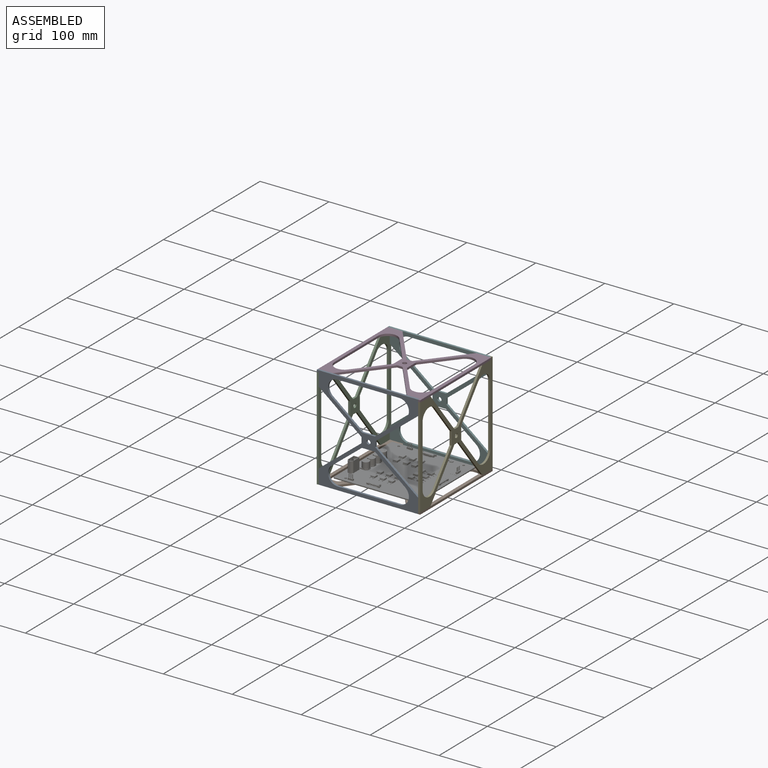
[diagram: assembled view]
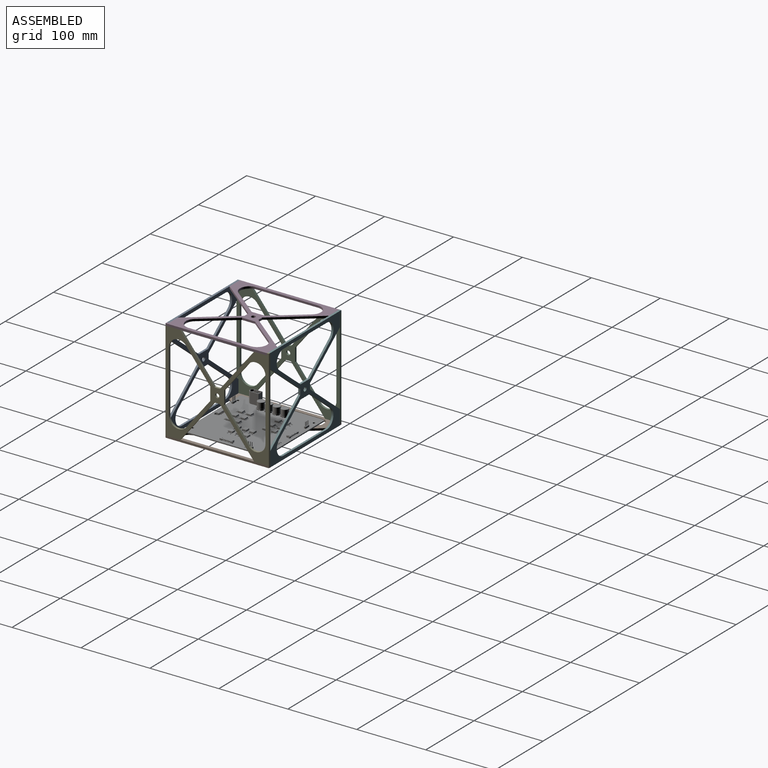
[diagram: assembled view, second angle]
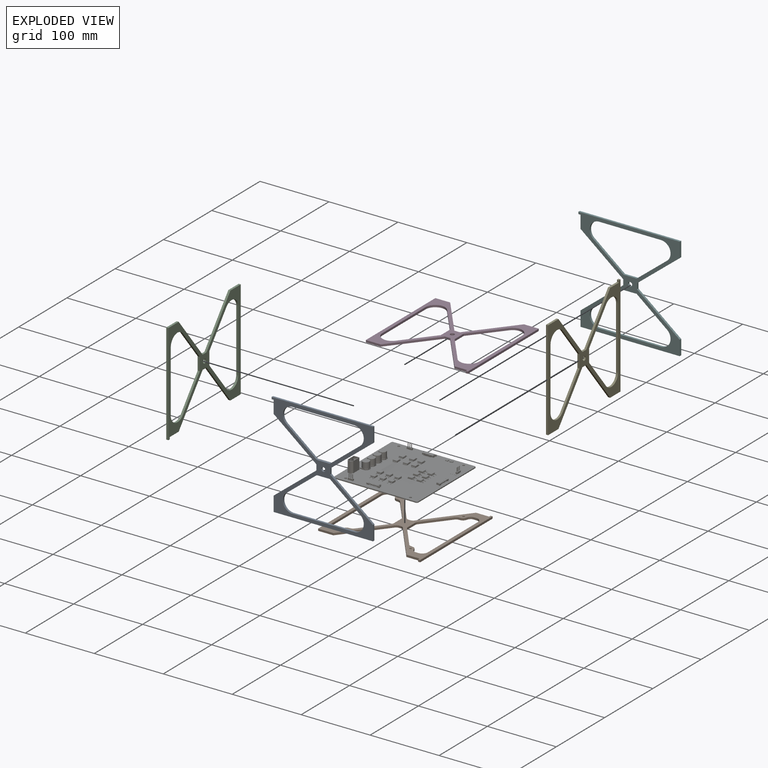
[diagram: exploded view]
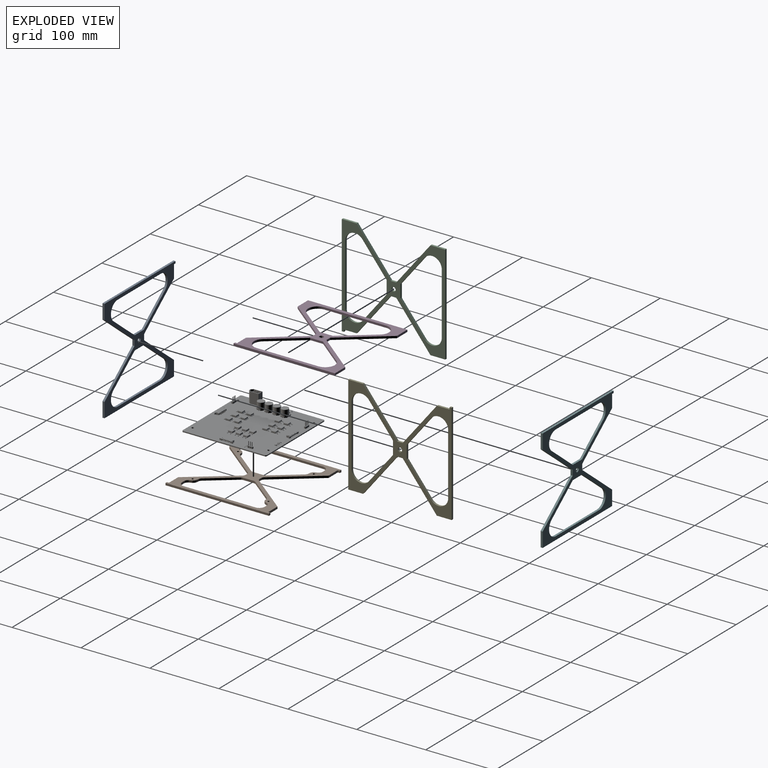
[diagram: exploded view, second angle]
FCSTD DOCUMENT  (FreeCAD 1.0R39109 (Git))
Label: assembly
License: All rights reserved
LicenseURL: https://en.wikipedia.org/wiki/All_rights_reserved
objects: App::Link×19, Assembly::AssemblyLink×6, App::FeaturePython×4, Assembly::JointGroup×1, Assembly::AssemblyObject×1
EXTERNAL_REF file=cubeshell.FCStd obj=Body007
EXTERNAL_REF file=motor.FCStd obj=Assembly
EXTERNAL_REF file=motor.FCStd obj=Body001
EXTERNAL_REF file=motor.FCStd obj=Cut001
EXTERNAL_REF file=motordriverpcb.FCStd obj=Part
EXTERNAL_REF file=flywheel.FCStd obj=Assembly
EXTERNAL_REF file=flywheel.FCStd obj=Body002
EXTERNAL_REF file=flywheel.FCStd obj=Body003
EXTERNAL_REF file=cubeshell.FCStd obj=Body

FEATURE [App::Link] Body007
  LinkedObject = -> <external cubeshell.FCStd>#Body007
FEATURE [App::FeaturePython] GroundedJoint  # Assembly grounded joint (typed FeaturePython)
  ObjectToGround = -> Body007
FEATURE [App::Link] Body001
  LinkedObject = -> <external motor.FCStd>#Body001
FEATURE [App::Link] Cut001
  LinkPlacement = pos=(2.848e-13,-4,1.86e-13) rot=(0.57735,-0.57735,0.57735;4.18879rad)
  LinkedObject = -> <external motor.FCStd>#Cut001
  Placement = pos=(2.848e-13,-4,1.86e-13) rot=(0.57735,-0.57735,0.57735;4.18879rad)
FEATURE [Assembly::AssemblyLink] Assembly001
  Group = -> [Body001,Cut001]
  LinkedObject = -> <external motor.FCStd>#Assembly
  Origin = -> Origin001
  Placement = pos=(-2.63327e-05,-62.5,75) rot=(0.92388,0,-0.382683;3.14159rad)
  Rigid = true
FEATURE [App::Link] Body008
  LinkedObject = -> <external motor.FCStd>#Body001
FEATURE [App::Link] Cut002
  LinkPlacement = pos=(1.34e-14,-4,1e-16) rot=(0.694747,-0.694747,0.186157;3.50969rad)
  LinkedObject = -> <external motor.FCStd>#Cut001
  Placement = pos=(1.34e-14,-4,1e-16) rot=(0.694747,-0.694747,0.186157;3.50969rad)
FEATURE [Assembly::AssemblyLink] Assembly002
  Group = -> [Body008,Cut002]
  LinkedObject = -> <external motor.FCStd>#Assembly
  Origin = -> Origin002
  Placement = pos=(17.0722,163.072,17.0722) rot=(0,0,1;0rad)
  Rigid = true
FEATURE [App::Link] Body009
  LinkedObject = -> <external motor.FCStd>#Body001
FEATURE [App::Link] Cut003
  LinkPlacement = pos=(1.34e-14,-4,1e-16) rot=(0.694747,-0.694747,0.186157;3.50969rad)
  LinkedObject = -> <external motor.FCStd>#Cut001
  Placement = pos=(1.34e-14,-4,1e-16) rot=(0.694747,-0.694747,0.186157;3.50969rad)
FEATURE [Assembly::AssemblyLink] Assembly003
  Group = -> [Body009,Cut003]
  LinkedObject = -> <external motor.FCStd>#Assembly
  Origin = -> Origin003
  Placement = pos=(34.1444,254.144,34.1444) rot=(0,0,1;0rad)
  Rigid = true
FEATURE [App::Link] motordriverpcb
  LinkPlacement = pos=(90,-154.028,7.51) rot=(0.707107,0.707107,0;3.14159rad)
  LinkedObject = -> <external motordriverpcb.FCStd>#Part
  Placement = pos=(90,-154.028,7.51) rot=(0.707107,0.707107,0;3.14159rad)
FEATURE [App::Link] Body002
  LinkedObject = -> <external flywheel.FCStd>#Body002
FEATURE [App::Link] Body003
  LinkPlacement = pos=(-4.35059e-07,-7.53544e-07,-2) rot=(0,0,1;0rad)
  LinkedObject = -> <external flywheel.FCStd>#Body003
  Placement = pos=(-4.35059e-07,-7.53544e-07,-2) rot=(0,0,1;0rad)
FEATURE [Assembly::AssemblyLink] flywheel
  Group = -> [Body002,Body003]
  LinkedObject = -> <external flywheel.FCStd>#Assembly
  Origin = -> Origin004
  Placement = pos=(80.332,80.332,80.332) rot=(0,0,1;0rad)
  Rigid = true
FEATURE [App::Link] Body010
  LinkedObject = -> <external flywheel.FCStd>#Body002
FEATURE [App::Link] Body011
  LinkPlacement = pos=(-4.35059e-07,-7.53544e-07,-2) rot=(0,0,1;0rad)
  LinkedObject = -> <external flywheel.FCStd>#Body003
  Placement = pos=(-4.35059e-07,-7.53544e-07,-2) rot=(0,0,1;0rad)
FEATURE [Assembly::AssemblyLink] flywheel001
  Group = -> [Body010,Body011]
  LinkedObject = -> <external flywheel.FCStd>#Assembly
  Origin = -> Origin005
  Placement = pos=(97.7312,97.7312,97.7312) rot=(0,0,1;0rad)
  Rigid = true
FEATURE [App::Link] Body012
  LinkedObject = -> <external flywheel.FCStd>#Body002
FEATURE [App::Link] Body013
  LinkPlacement = pos=(-4.35059e-07,-7.53544e-07,-2) rot=(0,0,1;0rad)
  LinkedObject = -> <external flywheel.FCStd>#Body003
  Placement = pos=(-4.35059e-07,-7.53544e-07,-2) rot=(0,0,1;0rad)
FEATURE [Assembly::AssemblyLink] flywheel002
  Group = -> [Body012,Body013]
  LinkedObject = -> <external flywheel.FCStd>#Assembly
  Origin = -> Origin006
  Placement = pos=(-2.64085e-05,-64.75,75) rot=(0.862856,-0.357407,0.357407;1.71777rad)
  Rigid = true
FEATURE [App::Link] Body
  LinkPlacement = pos=(-2.67534e-05,-75,75) rot=(-0.564537,-0.564537,-0.564537;2.0944rad)
  LinkedObject = -> <external cubeshell.FCStd>#Body
  Placement = pos=(-2.67534e-05,-75,75) rot=(-0.564537,-0.564537,-0.564537;2.0944rad)
FEATURE [App::Link] Body014
  LinkPlacement = pos=(-72,2e-06,75) rot=(-0.58,0.58,0.58;4.18879rad)
  LinkedObject = -> <external cubeshell.FCStd>#Body
  Placement = pos=(-72,2e-06,75) rot=(-0.58,0.58,0.58;4.18879rad)
FEATURE [App::Link] Body015
  LinkPlacement = pos=(4.00543e-05,-7.236e-05,147) rot=(0,0,1;0rad)
  LinkedObject = -> <external cubeshell.FCStd>#Body
  Placement = pos=(4.00543e-05,-7.236e-05,147) rot=(0,0,1;0rad)
FEATURE [App::Link] Body016
  LinkPlacement = pos=(75,-1.19207e-07,75) rot=(0.603516,0.603516,-0.603516;4.18879rad)
  LinkedObject = -> <external cubeshell.FCStd>#Body
  Placement = pos=(75,-1.19207e-07,75) rot=(0.603516,0.603516,-0.603516;4.18879rad)
FEATURE [App::Link] Body017
  LinkPlacement = pos=(-4.19059e-06,72,75) rot=(0.583052,0.583052,0.583052;4.18879rad)
  LinkedObject = -> <external cubeshell.FCStd>#Body
  Placement = pos=(-4.19059e-06,72,75) rot=(0.583052,0.583052,0.583052;4.18879rad)
FEATURE [App::FeaturePython] Joint  label="Fixed"  # Assembly joint (typed FeaturePython)
  Activated = true
  AngleMax = 0
  AngleMin = 0
  Detach1 = false
  Detach2 = false
  Distance = 0
  Distance2 = 0
  EnableAngleMax = false
  EnableAngleMin = false
  EnableLengthMax = false
  EnableLengthMin = false
  JointType = 0 (Fixed)
  LengthMax = 0
  LengthMin = 0
  Offset2 = pos=(0,0,-3) rot=(0,0,1;3.14159rad)
  Placement1 = pos=(47,55,3) rot=(0,0,1;0rad)
  Placement2 = pos=(209.028,-43,4.51) rot=(0.707107,0.707107,0;3.14159rad)
  Reference1 = -> Assembly [Body007.Edge93,Body007.Edge93]
  Reference2 = -> Assembly [motordriverpcb.LinkGroup005.Solid023.Edge70,motordriverpcb.LinkGroup005.Solid023.Edge70]
FEATURE [App::FeaturePython] Joint001  label="Fixed001"  # Assembly joint (typed FeaturePython)
  Activated = true
  AngleMax = 0
  AngleMin = 0
  Detach1 = false
  Detach2 = false
  Distance = 0
  Distance2 = 0
  EnableAngleMax = false
  EnableAngleMin = false
  EnableLengthMax = false
  EnableLengthMin = false
  JointType = 0 (Fixed)
  LengthMax = 0
  LengthMin = 0
  Offset2 = pos=(0,0,4) rot=(0,0,-1;0.785398rad)
  Placement2 = pos=(-16.5,0,0) rot=(-0.357407,-0.862856,-0.357407;4.56541rad)
  Reference1 = -> Assembly [Body.Edge80,Body.Edge80]
  Reference2 = -> Assembly [Assembly001.Cut001.Edge103,Assembly001.Cut001.Edge103]
FEATURE [App::FeaturePython] Joint002  label="Revolute"  # Assembly joint (typed FeaturePython)
  Activated = true
  AngleMax = 0
  AngleMin = 0
  Detach1 = false
  Detach2 = false
  Distance = 0
  Distance2 = 0
  EnableAngleMax = false
  EnableAngleMin = false
  EnableLengthMax = false
  EnableLengthMin = false
  JointType = 1 (Revolute)
  LengthMax = 0
  LengthMin = 0
  Offset2 = pos=(0,0,-3) rot=(0,0,1;0rad)
  Placement1 = pos=(-11.25,0,1e-16) rot=(0.57735,0.57735,-0.57735;4.18879rad)
  Placement2 = pos=(0,0,3) rot=(0,0,1;0rad)
  Reference1 = -> Assembly [Assembly001.Cut001.Face39,Assembly001.Cut001.Face39]
  Reference2 = -> Assembly [flywheel002.Body012.Face5,flywheel002.Body012.Edge9]
FEATURE [Assembly::JointGroup] Joints
  Group = -> [GroundedJoint,Joint,Joint001,Joint002]
FEATURE [Assembly::AssemblyObject] Assembly
  Group = -> [Joints,Body007,GroundedJoint,Assembly001,Assembly002,Assembly003,motordriverpcb,flywheel,flywheel001,flywheel002,Body,Body014,Body015,Body016,Body017,Joint,Joint001,Joint002]
  Origin = -> Origin
  Type = Assembly

RESOLVED EXTERNAL PARTS (link-assembly join: the EXTERNAL_REF files above that resolve inside this repo's crawl, each included once):
---- part cubeshell.FCStd = doc fcstd_5b053994b428 ----
FCSTD DOCUMENT  (FreeCAD 1.0R39109 (Git))
Label: cubeshell
License: All rights reserved
LicenseURL: http://en.wikipedia.org/wiki/All_rights_reserved
objects: Sketcher::SketchObject×2, PartDesign::Pad×2, PartDesign::Body×2, PartDesign::Fillet×1, Part::Box×1
note: 16 computed .brp shape members not serialized (recipe doc carries the construction recipe); baked Part::Feature solids carry a one-line shape summary decoded from their .brp

FEATURE [Sketcher::SketchObject] Sketch
  ArcFitTolerance = 1e-06
  AttachmentSupport = -> [XY_Plane]
  FullyConstrained = true
  MakeInternals = false
  MapMode = 5
  sketch-geometry (29):
    g0: LineSegment StartX=45.0615 StartY=53.3922 StartZ=0 EndX=10 EndY=9.5 EndZ=0
    g1: LineSegment StartX=10 StartY=-9.5 StartZ=0 EndX=45.0615 EndY=-53.3922 EndZ=0
    g2: ArcOfCircle CenterX=56 CenterY=-44.6544 CenterZ=0 NormalX=0 NormalY=0 NormalZ=1 AngleXU=0 Radius=14 StartAngle=3.81561 EndAngle=6.28319
    g3: ArcOfCircle CenterX=56 CenterY=44.6544 CenterZ=0 NormalX=0 NormalY=0 NormalZ=1 AngleXU=0 Radius=14 StartAngle=6.28318 EndAngle=8.75076
    g4: LineSegment StartX=75 StartY=-75 StartZ=0 EndX=75 EndY=72 EndZ=0
    g5: LineSegment StartX=10 StartY=9.5 StartZ=0 EndX=10 EndY=-9.5 EndZ=0
    g6: LineSegment StartX=-45.0615 StartY=53.3922 StartZ=0 EndX=-10 EndY=9.5 EndZ=0
    g7: LineSegment StartX=-10 StartY=-9.5 StartZ=0 EndX=-45.0615 EndY=-53.3922 EndZ=0
    g8: LineSegment StartX=-70 StartY=-44.6544 StartZ=0 EndX=-70 EndY=44.6544 EndZ=0
    g9: ArcOfCircle CenterX=-56 CenterY=-44.6544 CenterZ=0 NormalX=0 NormalY=0 NormalZ=1 AngleXU=0 Radius=14 StartAngle=3.14159 EndAngle=5.60917
    g10: GeomPoint [constr] X=-70 Y=-84.6119 Z=0
    g11: ArcOfCircle CenterX=-56 CenterY=44.6544 CenterZ=0 NormalX=0 NormalY=0 NormalZ=1 AngleXU=0 Radius=14 StartAngle=0.674014 EndAngle=3.14159
    g12: GeomPoint [constr] X=-70 Y=84.6119 Z=0
    g13: LineSegment StartX=-75 StartY=-72 StartZ=0 EndX=-75 EndY=72 EndZ=0
    g14: LineSegment StartX=-10 StartY=9.5 StartZ=0 EndX=-10 EndY=-9.5 EndZ=0
    g15: LineSegment StartX=-4 StartY=10 StartZ=0 EndX=4 EndY=10 EndZ=0
    g16: LineSegment StartX=-4 StartY=-10 StartZ=0 EndX=4 EndY=-10 EndZ=0
    g17: LineSegment StartX=72 StartY=-72 StartZ=0 EndX=53.5261 EndY=-72 EndZ=0
    g18: LineSegment StartX=53.5261 StartY=-72 StartZ=0 EndX=4 EndY=-10 EndZ=0
    g19: LineSegment StartX=75 StartY=72 StartZ=0 EndX=53.5261 EndY=72 EndZ=0
    g20: LineSegment StartX=53.5261 StartY=72 StartZ=0 EndX=4 EndY=10 EndZ=0
    g21: LineSegment StartX=-53.5261 StartY=72 StartZ=0 EndX=-4 EndY=10 EndZ=0
    g22: LineSegment StartX=-75 StartY=-72 StartZ=0 EndX=-53.5261 EndY=-72 EndZ=0
    g23: LineSegment StartX=-53.5261 StartY=-72 StartZ=0 EndX=-4 EndY=-10 EndZ=0
    g24: LineSegment StartX=72 StartY=-72 StartZ=0 EndX=72 EndY=-75 EndZ=0
    g25: LineSegment StartX=72 StartY=-75 StartZ=0 EndX=75 EndY=-75 EndZ=0
    g26: LineSegment StartX=-53.5261 StartY=72 StartZ=0 EndX=-75 EndY=72 EndZ=0
    g27: LineSegment StartX=70 StartY=44.6544 StartZ=0 EndX=70 EndY=-44.6544 EndZ=0
    g28: Circle CenterX=0 CenterY=0 CenterZ=0 NormalX=0 NormalY=0 NormalZ=1 AngleXU=0 Radius=3
  constraints (76):
    c: Tangent(g1,g2) = -1.5708
    c: Tangent(g0,g3) = -1.5708
    c: Vertical(g4)
    c: Radius(g2) = 14
    c: Equal(g2,g3)
    c: Vertical(g0,g1)
    c: Coincident(g0,g5)
    c: Coincident(g5,g1)
    c: Vertical(g8)
    c: PointOnObject(g10,g7)
    c: PointOnObject(g10,g8)
    c: Tangent(g7,g9) = 1.5708
    c: Tangent(g8,g9) = 1.5708
    c: PointOnObject(g12,g6)
    c: PointOnObject(g12,g8)
    c: Tangent(g6,g11) = 1.5708
    c: Tangent(g8,g11) = 1.5708
    c: Vertical(g13)
    c: Coincident(g6,g14)
    c: Coincident(g14,g7)
    c: Horizontal(g15)
    c: Horizontal(g16)
    c: Vertical(g15,g16)
    c: Horizontal(g0,g6)
    c: Equal(g9,g2)
    c: DistanceY(g22,g13) = 144
    c: Symmetric(g6,g1,g-1)
    c: Symmetric(g11,g2,g-1)
    c: DistanceY(g16,g15) = 20
    c: DistanceX(g6,g0) = 20
    c: DistanceX(g15,g15) = 8
    c: Horizontal(g17)
    c: Coincident(g17,g18)
    c: Coincident(g18,g16)
    c: Parallel(g18,g1)
    c: Distance(g18,g1) = 5
    c: Horizontal(g19)
    c: Coincident(g19,g20)
    c: Coincident(g20,g15)
    c: Parallel(g20,g0)
    c: Distance(g0,g20) = 5
    c: Coincident(g21,g15)
    c: Horizontal(g22)
    c: Coincident(g22,g23)
    c: Coincident(g23,g16)
    c: Symmetric(g3,g9,g-1)
    c: Parallel(g7,g23)
    c: Parallel(g6,g21)
    c: Distance(g6,g21) = 5
    c: Distance(g2,g4) = 5
    c: Coincident(g4,g19)
    c: Coincident(g22,g13)
    c: Distance(g13,g8) = 5
    c: Symmetric(g7,g0,g-1)
    c: Symmetric(g15,g16,g-1)
    c: DistanceX(g13,g4) = 150
    c: Vertical(g24)
    c: Coincident(g24,g25)
    c: Horizontal(g25)
    c: Coincident(g17,g24)
    c: DistanceX(g25,g25) = 3
    c: DistanceY(g24,g24) = 3
    c: Vertical(g19,g17)
    c: Coincident(g21,g26)
    c: Horizontal(g26)
    c: Vertical(g21,g22)
    c: Coincident(g25,g4)
    c: DistanceY(g4,g4) = 147
    c: DistanceY(g14,g14) = 19
    c: Coincident(g26,g13)
    c: Vertical(g27)
    c: Horizontal(g21,g19)
    c: Tangent(g27,g2) = 1.5708
    c: Diameter(g28) = 6
    c: Coincident(g28,g-1)
    c: Coincident(g27,g3)
FEATURE [PartDesign::Pad] Pad
  Direction = (0,0,1)
  Length = 3
  Length2 = 10
  Profile = -> Sketch
  ReferenceAxis = -> Sketch [N_Axis]
  Suppressed = false
  Type = 0
FEATURE [PartDesign::Body] Body
  AllowCompound = false
  Group = -> [Sketch,Pad]
  Origin = -> Origin
  Placement = pos=(-72,27,-72) rot=(0.57735,-0.57735,-0.57735;2.0944rad)
  Tip = -> Pad
FEATURE [Sketcher::SketchObject] Sketch001
  ArcFitTolerance = 1e-06
  AttachmentSupport = -> [XY_Plane305]
  FullyConstrained = true
  MakeInternals = false
  MapMode = 5
  sketch-geometry (70):
    g0: LineSegment StartX=10 StartY=-9.5 StartZ=0 EndX=39.567 EndY=-46.929 EndZ=0
    g1: LineSegment StartX=70 StartY=-52 StartZ=0 EndX=70 EndY=52 EndZ=0
    g2: ArcOfCircle CenterX=62 CenterY=-52 CenterZ=0 NormalX=0 NormalY=0 NormalZ=1 AngleXU=0 Radius=8 StartAngle=4.71239 EndAngle=6.28319
    g3: ArcOfCircle CenterX=62 CenterY=52 CenterZ=0 NormalX=0 NormalY=0 NormalZ=1 AngleXU=0 Radius=8 StartAngle=0 EndAngle=1.5708
    g4: LineSegment StartX=75 StartY=-75 StartZ=0 EndX=75 EndY=75 EndZ=0
    g5: LineSegment StartX=10 StartY=9.5 StartZ=0 EndX=10 EndY=-9.5 EndZ=0
    g6: LineSegment StartX=-10 StartY=-9.5 StartZ=0 EndX=-39.567 EndY=-46.929 EndZ=0
    g7: LineSegment StartX=-70 StartY=-52 StartZ=0 EndX=-70 EndY=52 EndZ=0
    g8: ArcOfCircle CenterX=-62 CenterY=-52 CenterZ=0 NormalX=0 NormalY=0 NormalZ=1 AngleXU=0 Radius=8 StartAngle=3.14159 EndAngle=4.71239
    g9: ArcOfCircle CenterX=-62 CenterY=52 CenterZ=0 NormalX=0 NormalY=0 NormalZ=1 AngleXU=0 Radius=8 StartAngle=1.5708 EndAngle=3.14159
    g10: LineSegment StartX=-75 StartY=-72 StartZ=0 EndX=-75 EndY=75 EndZ=0
    g11: LineSegment StartX=-10 StartY=9.5 StartZ=0 EndX=-10 EndY=-9.5 EndZ=0
    g12: LineSegment StartX=-3.97688 StartY=10 StartZ=0 EndX=4.02312 EndY=10 EndZ=0
    g13: LineSegment StartX=-4.02312 StartY=-10 StartZ=0 EndX=4.02312 EndY=-10 EndZ=0
    g14: LineSegment StartX=72 StartY=-72 StartZ=0 EndX=53 EndY=-72 EndZ=0
    g15: LineSegment StartX=53 StartY=-72 StartZ=0 EndX=4.02312 EndY=-10 EndZ=0
    g16: LineSegment StartX=53 StartY=72 StartZ=0 EndX=4.02312 EndY=10 EndZ=0
    g17: LineSegment StartX=-53 StartY=72 StartZ=0 EndX=-3.97688 EndY=10 EndZ=0
    g18: LineSegment StartX=-75 StartY=-72 StartZ=0 EndX=-53 EndY=-72 EndZ=0
    g19: LineSegment StartX=-53 StartY=-72 StartZ=0 EndX=-4.02312 EndY=-10 EndZ=0
    g20: LineSegment StartX=72 StartY=-72 StartZ=0 EndX=72 EndY=-75 EndZ=0
    g21: LineSegment StartX=72 StartY=-75 StartZ=0 EndX=75 EndY=-75 EndZ=0
    g22: LineSegment StartX=-53 StartY=72 StartZ=0 EndX=-72 EndY=72 EndZ=0
    g23: LineSegment StartX=-72 StartY=72 StartZ=0 EndX=-72 EndY=75 EndZ=0
    g24: LineSegment StartX=-72 StartY=75 StartZ=0 EndX=-75 EndY=75 EndZ=0
    g25: LineSegment StartX=53 StartY=72 StartZ=0 EndX=72 EndY=72 EndZ=0
    g26: LineSegment StartX=72 StartY=72 StartZ=0 EndX=72 EndY=75 EndZ=0
    g27: LineSegment StartX=72 StartY=75 StartZ=0 EndX=75 EndY=75 EndZ=0
    g28: Circle CenterX=-47 CenterY=55 CenterZ=0 NormalX=0 NormalY=0 NormalZ=1 AngleXU=0 Radius=1.5
    g29: Circle CenterX=-47 CenterY=-55 CenterZ=0 NormalX=0 NormalY=0 NormalZ=1 AngleXU=0 Radius=1.5
    g30: Circle CenterX=47 CenterY=-55 CenterZ=0 NormalX=0 NormalY=0 NormalZ=1 AngleXU=0 Radius=1.5
    g31: Circle CenterX=47 CenterY=55 CenterZ=0 NormalX=0 NormalY=0 NormalZ=1 AngleXU=0 Radius=1.5
    g32: LineSegment StartX=43.5105 StartY=-49.1608 StartZ=0 EndX=46.486 EndY=-49.5432 EndZ=0
    g33: LineSegment StartX=51.3237 StartY=-53.3465 StartZ=0 EndX=52.3976 EndY=-56.1477 EndZ=0
    g34: ArcOfCircle CenterX=45.7213 CenterY=-55.4943 CenterZ=0 NormalX=0 NormalY=0 NormalZ=1 AngleXU=0 Radius=6 StartAngle=0.366078 EndAngle=1.44299
    g35: GeomPoint [constr] X=50.0408 Y=-50 Z=0
    g36: ArcOfCircle CenterX=44.2752 CenterY=-43.2098 CenterZ=0 NormalX=0 NormalY=0 NormalZ=1 AngleXU=0 Radius=6 StartAngle=3.81018 EndAngle=4.58458
    g37: GeomPoint [constr] X=41.0837 Y=-48.849 Z=0
    g38: LineSegment StartX=39.567 StartY=46.929 StartZ=0 EndX=10 EndY=9.5 EndZ=0
    g39: LineSegment StartX=62 StartY=60 StartZ=0 EndX=58 EndY=60 EndZ=0
    g40: LineSegment StartX=52.3976 StartY=56.1477 StartZ=0 EndX=51.3237 EndY=53.3465 EndZ=0
    g41: LineSegment StartX=46.486 StartY=49.5432 StartZ=0 EndX=43.5105 EndY=49.1608 EndZ=0
    g42: LineSegment StartX=-39.5892 StartY=46.9218 StartZ=0 EndX=-10 EndY=9.5 EndZ=0
    g43: LineSegment StartX=-62 StartY=60 StartZ=0 EndX=-58 EndY=60 EndZ=0
    g44: LineSegment StartX=-52.3964 StartY=56.1446 StartZ=0 EndX=-51.3241 EndY=53.3428 EndZ=0
    g45: LineSegment StartX=-46.4955 StartY=49.5376 StartZ=0 EndX=-43.5206 EndY=49.1501 EndZ=0
    g46: LineSegment StartX=-62 StartY=-60 StartZ=0 EndX=-58 EndY=-60 EndZ=0
    g47: LineSegment StartX=-52.3976 StartY=-56.1477 StartZ=0 EndX=-51.3237 EndY=-53.3465 EndZ=0
    g48: LineSegment StartX=-46.486 StartY=-49.5432 StartZ=0 EndX=-43.5105 EndY=-49.1608 EndZ=0
    g49: LineSegment StartX=58 StartY=-60 StartZ=0 EndX=62 EndY=-60 EndZ=0
    g50: ArcOfCircle CenterX=58 CenterY=-54 CenterZ=0 NormalX=0 NormalY=0 NormalZ=1 AngleXU=0 Radius=6 StartAngle=3.50767 EndAngle=4.71239
    g51: GeomPoint [constr] X=53.8744 Y=-60 Z=0
    g52: ArcOfCircle CenterX=45.7213 CenterY=55.4943 CenterZ=0 NormalX=0 NormalY=0 NormalZ=1 AngleXU=0 Radius=6 StartAngle=4.84019 EndAngle=5.91711
    g53: GeomPoint [constr] X=50.0408 Y=50 Z=0
    g54: ArcOfCircle CenterX=44.2752 CenterY=43.2098 CenterZ=0 NormalX=0 NormalY=0 NormalZ=1 AngleXU=0 Radius=6 StartAngle=1.6986 EndAngle=2.47301
    g55: GeomPoint [constr] X=41.0837 Y=48.849 Z=0
    g56: ArcOfCircle CenterX=58 CenterY=54 CenterZ=0 NormalX=0 NormalY=0 NormalZ=1 AngleXU=0 Radius=6 StartAngle=1.5708 EndAngle=2.77551
    g57: GeomPoint [constr] X=53.8744 Y=60 Z=0
    g58: ArcOfCircle CenterX=-45.7213 CenterY=-55.4943 CenterZ=0 NormalX=0 NormalY=0 NormalZ=1 AngleXU=0 Radius=6 StartAngle=1.6986 EndAngle=2.77551
    g59: GeomPoint [constr] X=-50.0408 Y=-50 Z=0
    g60: ArcOfCircle CenterX=-44.2752 CenterY=-43.2098 CenterZ=0 NormalX=0 NormalY=0 NormalZ=1 AngleXU=0 Radius=6 StartAngle=4.84019 EndAngle=5.6146
    g61: GeomPoint [constr] X=-41.0837 Y=-48.849 Z=0
    g62: ArcOfCircle CenterX=-58 CenterY=-54 CenterZ=0 NormalX=0 NormalY=0 NormalZ=1 AngleXU=0 Radius=6 StartAngle=4.71239 EndAngle=5.91711
    g63: GeomPoint [constr] X=-53.8744 Y=-60 Z=0
    g64: ArcOfCircle CenterX=-44.2957 CenterY=43.2004 CenterZ=0 NormalX=0 NormalY=0 NormalZ=1 AngleXU=0 Radius=6 StartAngle=0.669042 EndAngle=1.44125
    g65: GeomPoint [constr] X=-41.102 Y=48.835 Z=0
    g66: ArcOfCircle CenterX=-45.7204 CenterY=55.4874 CenterZ=0 NormalX=0 NormalY=0 NormalZ=1 AngleXU=0 Radius=6 StartAngle=3.50711 EndAngle=4.58285
    g67: GeomPoint [constr] X=-50.0447 Y=50 Z=0
    g68: ArcOfCircle CenterX=-58 CenterY=54 CenterZ=0 NormalX=0 NormalY=0 NormalZ=1 AngleXU=0 Radius=6 StartAngle=0.365517 EndAngle=1.5708
    g69: GeomPoint [constr] X=-53.8719 Y=60 Z=0
  constraints (176):
    c: Vertical(g1)
    c: Tangent(g1,g2) = -1.5708
    c: Tangent(g1,g3) = -1.5708
    c: Vertical(g4)
    c: Radius(g2) = 8
    c: Equal(g2,g3)
    c: Vertical(g38,g0)
    c: Coincident(g38,g5)
    c: Coincident(g5,g0)
    c: Vertical(g7)
    c: Tangent(g7,g8) = 1.5708
    c: Tangent(g7,g9) = 1.5708
    c: Vertical(g10)
    c: Coincident(g42,g11)
    c: Coincident(g11,g6)
    c: Horizontal(g12)
    c: Horizontal(g13)
    c: Vertical(g12,g13)
    c: Horizontal(g38,g42)
    c: Equal(g8,g2)
    c: DistanceY(g18,g10) = 147
    c: Symmetric(g42,g0,g-1)
    c: Symmetric(g9,g2,g-1)
    c: DistanceY(g13,g12) = 20
    c: DistanceX(g42,g38) = 20
    c: DistanceX(g12,g12) = 8
    c: Horizontal(g14)
    c: Coincident(g14,g15)
    c: Coincident(g15,g13)
    c: Parallel(g15,g0)
    c: Coincident(g16,g12)
    c: Coincident(g17,g12)
    c: Horizontal(g18)
    c: Coincident(g18,g19)
    c: Coincident(g19,g13)
    c: Symmetric(g3,g8,g-1)
    c: Parallel(g6,g19)
    c: Distance(g1,g4) = 5
    c: Coincident(g18,g10)
    c: Distance(g10,g7) = 5
    c: Symmetric(g6,g38,g-1)
    c: Symmetric(g12,g13,g-1)
    c: DistanceX(g10,g4) = 150
    c: Vertical(g20)
    c: Coincident(g20,g21)
    c: Horizontal(g21)
    c: Coincident(g14,g20)
    c: DistanceX(g21,g21) = 3
    c: DistanceY(g20,g20) = 3
    c: Vertical(g16,g14)
    c: Vertical(g17,g18)
    c: Coincident(g21,g4)
    c: DistanceY(g4,g4) = 150
    c: DistanceY(g11,g11) = 19
    c: Coincident(g17,g22)
    c: Horizontal(g22)
    c: Coincident(g22,g23)
    c: Vertical(g23)
    c: Coincident(g23,g24)
    c: Horizontal(g24)
    c: Coincident(g10,g24)
    c: DistanceX(g24,g24) = 3
    c: DistanceY(g23,g23) = 3
    c: Coincident(g16,g25)
    c: Horizontal(g25)
    c: Coincident(g25,g26)
    c: Vertical(g26)
    c: Coincident(g26,g27)
    c: Horizontal(g27)
    c: Coincident(g4,g27)
    c: DistanceX(g27,g27) = 3
    c: DistanceY(g26,g26) = 3
    c: Diameter(g28) = 3
    c: Diameter(g29) = 3
    c: Diameter(g30) = 3
    c: Diameter(g31) = 3
    c: Vertical(g29,g28)
    c: Horizontal(g31,g28)
    c: Vertical(g31,g30)
    c: Horizontal(g30,g29)
    c: DistanceY(g29,g28) = 110
    c: DistanceX(g28,g31) = 94
    c: Symmetric(g28,g30,g-1)
    c: Horizontal(g9,g3)
    c: PointOnObject(g35,g33)
    c: PointOnObject(g35,g32)
    c: Tangent(g33,g34) = 1.5708
    c: Tangent(g32,g34) = 1.5708
    c: PointOnObject(g37,g32)
    c: PointOnObject(g37,g0)
    c: Tangent(g32,g36) = -1.5708
    c: Tangent(g0,g36) = -1.5708
    c: Tangent(g3,g39) = -1.5708
    c: Tangent(g9,g43) = 1.5708
    c: Tangent(g8,g46) = -1.5708
    c: Parallel(g38,g16)
    c: Parallel(g42,g17)
    c: Tangent(g49,g2) = -1.5708
    c: PointOnObject(g51,g33)
    c: PointOnObject(g51,g49)
    c: Tangent(g33,g50) = -1.5708
    c: Tangent(g49,g50) = -1.5708
    c: PointOnObject(g53,g41)
    c: PointOnObject(g53,g40)
    c: Tangent(g41,g52) = 1.5708
    c: Tangent(g40,g52) = 1.5708
    c: PointOnObject(g55,g41)
    c: PointOnObject(g55,g38)
    c: Tangent(g41,g54) = -1.5708
    c: Tangent(g38,g54) = -1.5708
    c: PointOnObject(g57,g40)
    c: PointOnObject(g57,g39)
    c: Tangent(g40,g56) = -1.5708
    c: Tangent(g39,g56) = -1.5708
    c: Distance(g16,g38) = 5
    c: Distance(g15,g0) = 5
    c: Distance(g6,g19) = 5
    c: Horizontal(g18,g14)
    c: PointOnObject(g59,g48)
    c: PointOnObject(g59,g47)
    c: Tangent(g48,g58) = 1.5708
    c: Tangent(g47,g58) = 1.5708
    c: PointOnObject(g61,g6)
    c: PointOnObject(g61,g48)
    c: Tangent(g6,g60) = 1.5708
    c: Tangent(g48,g60) = -1.5708
    c: PointOnObject(g63,g47)
    c: PointOnObject(g63,g46)
    c: Tangent(g47,g62) = -1.5708
    c: Tangent(g46,g62) = -1.5708
    c: PointOnObject(g65,g42)
    c: PointOnObject(g65,g45)
    c: Tangent(g42,g64) = 1.5708
    c: Tangent(g45,g64) = 1.5708
    c: PointOnObject(g67,g44)
    c: PointOnObject(g67,g45)
    c: Tangent(g44,g66) = -1.5708
    c: Tangent(g45,g66) = -1.5708
    c: PointOnObject(g69,g43)
    c: PointOnObject(g69,g44)
    c: Tangent(g43,g68) = 1.5708
    c: Tangent(g44,g68) = 1.5708
    c: Radius(g34) = 6
    c: Horizontal(g49)
    c: Equal(g32,g33)
    c: DistanceX(g49,g49) = 4
    c: Distance(g33,g33) = 3
    c: Distance(g14,g49) = 12
    c: Distance(g35,g14) = 22
    c: Horizontal(g39)
    c: Equal(g34,g50)
    c: Equal(g34,g36)
    c: Equal(g34,g54)
    c: Equal(g34,g52)
    c: Equal(g34,g56)
    c: Equal(g41,g40)
    c: Equal(g49,g39)
    c: Equal(g33,g41)
    c: Distance(g53,g25) = 22
    c: Equal(g34,g58)
    c: Equal(g34,g60)
    c: Equal(g34,g62)
    c: Equal(g33,g48)
    c: Equal(g33,g47)
    c: Horizontal(g46)
    c: Equal(g49,g46)
    c: Distance(g59,g18) = 22
    c: Equal(g34,g66)
    c: Horizontal(g43)
    c: Equal(g49,g43)
    c: Distance(g67,g22) = 22
    c: DistanceX(g18,g18) = 22
    c: Equal(g33,g44)
    c: Equal(g33,g45)
    c: Equal(g34,g64)
    c: Equal(g34,g68)
FEATURE [PartDesign::Pad] Pad001
  Direction = (0,0,1)
  Length = 3
  Length2 = 10
  Profile = -> Sketch001
  ReferenceAxis = -> Sketch001 [N_Axis]
  Suppressed = false
  Type = 0
FEATURE [PartDesign::Fillet] Fillet001
  Base = -> Pad001 [Edge20,Edge23,Edge56,Edge59,Edge47,Edge44,Edge116,Edge119]
  BaseFeature = -> Pad001
  Radius = 6
  Refine = true
  SupportTransform = false
  Suppressed = false
  UseAllEdges = false
FEATURE [PartDesign::Body] Body007
  AllowCompound = false
  Group = -> [Sketch001,Pad001,Fillet001]
  Origin = -> Origin305
  Placement = pos=(1.6e-14,99,-72) rot=(0.57735,-0.57735,-0.57735;4.18879rad)
  Tip = -> Fillet001
FEATURE [Part::Box] Box  label="Cube"
  AttacherType = Attacher::AttachEngine3D
  Height = 12
  Length = 12
  Placement = pos=(-72,99,-144) rot=(0,0,1;4.71239rad)
  Width = 12
---- part flywheel.FCStd = doc fcstd_7f3940c26f2a ----
FCSTD DOCUMENT  (FreeCAD 1.0R39109 (Git))
Label: flywheel
License: All rights reserved
LicenseURL: https://en.wikipedia.org/wiki/All_rights_reserved
objects: Sketcher::SketchObject×12, PartDesign::Pocket×9, PartDesign::Pad×2, PartDesign::PolarPattern×2, PartDesign::Fillet×2, PartDesign::Body×2, App::Link×2, App::FeaturePython×2, Assembly::JointGroup×1, Assembly::AssemblyObject×1
note: 69 computed .brp shape members not serialized (recipe doc carries the construction recipe); baked Part::Feature solids carry a one-line shape summary decoded from their .brp

FEATURE [Sketcher::SketchObject] Sketch
  ArcFitTolerance = 1e-06
  AttachmentSupport = -> [XY_Plane]
  FullyConstrained = true
  MakeInternals = false
  MapMode = 5
  sketch-geometry (16):
    g0: Circle CenterX=0 CenterY=0 CenterZ=0 NormalX=0 NormalY=0 NormalZ=1 AngleXU=0 Radius=55
    g1: ArcOfCircle CenterX=0 CenterY=0 CenterZ=0 NormalX=0 NormalY=0 NormalZ=1 AngleXU=0 Radius=45 StartAngle=1.62638 EndAngle=3.60961
    g2: LineSegment StartX=-2.5 StartY=18.7639 StartZ=0 EndX=-2.5 EndY=44.9305 EndZ=0
    g3: LineSegment StartX=2.5 StartY=18.7639 StartZ=0 EndX=2.5 EndY=44.9305 EndZ=0
    g4: LineSegment StartX=-17.5 StartY=-7.21688 StartZ=0 EndX=-40.161 EndY=-20.3002 EndZ=0
    g5: LineSegment StartX=-15 StartY=-11.547 StartZ=0 EndX=-37.661 EndY=-24.6303 EndZ=0
    g6: LineSegment StartX=15 StartY=-11.547 StartZ=0 EndX=37.661 EndY=-24.6303 EndZ=0
    g7: LineSegment StartX=17.5 StartY=-7.21688 StartZ=0 EndX=40.161 EndY=-20.3002 EndZ=0
    g8: LineSegment [constr] StartX=-40.161 StartY=-20.3002 StartZ=0 EndX=-2.5 EndY=44.9305 EndZ=0
    g9: LineSegment [constr] StartX=-37.661 StartY=-24.6303 StartZ=0 EndX=37.661 EndY=-24.6303 EndZ=0
    g10: LineSegment [constr] StartX=40.161 StartY=-20.3002 StartZ=0 EndX=2.5 EndY=44.9305 EndZ=0
    g11: ArcOfCircle CenterX=0 CenterY=0 CenterZ=0 NormalX=0 NormalY=0 NormalZ=1 AngleXU=0 Radius=45 StartAngle=3.72078 EndAngle=5.704
    g12: ArcOfCircle CenterX=0 CenterY=0 CenterZ=0 NormalX=0 NormalY=0 NormalZ=1 AngleXU=0 Radius=45 StartAngle=5.81517 EndAngle=7.7984
    g13: LineSegment StartX=-15 StartY=-11.547 StartZ=0 EndX=15 EndY=-11.547 EndZ=0
    g14: LineSegment StartX=17.5 StartY=-7.21688 StartZ=0 EndX=2.5 EndY=18.7639 EndZ=0
    g15: LineSegment StartX=-2.5 StartY=18.7639 StartZ=0 EndX=-17.5 EndY=-7.21688 EndZ=0
  constraints (46):
    c: Diameter(g0) = 110
    c: Diameter(g1) = 90
    c: Coincident(g0,g-1)
    c: Coincident(g1,g0)
    c: PointOnObject(g7,g12)
    c: PointOnObject(g5,g11)
    c: Coincident(g8,g2)
    c: Coincident(g4,g8)
    c: Coincident(g9,g5)
    c: Coincident(g9,g6)
    c: Coincident(g7,g10)
    c: Coincident(g10,g3)
    c: Equal(g8,g9)
    c: Equal(g9,g10)
    c: Coincident(g12,g3)
    c: Coincident(g1,g2)
    c: Equal(g1,g11)
    c: Coincident(g1,g4)
    c: PointOnObject(g11,g9)
    c: Coincident(g1,g11)
    c: Equal(g11,g12)
    c: Coincident(g11,g6)
    c: PointOnObject(g12,g7)
    c: Coincident(g11,g12)
    c: Horizontal(g13)
    c: Coincident(g7,g14)
    c: Coincident(g6,g13)
    c: Coincident(g5,g13)
    c: Coincident(g4,g15)
    c: Coincident(g2,g15) = 4.71239
    c: Coincident(g3,g14)
    c: Parallel(g2,g3)
    c: Parallel(g7,g6)
    c: Parallel(g4,g5)
    c: Distance(g15,g15) = 30
    c: Equal(g15,g14)
    c: Equal(g15,g13)
    c: Distance(g2,g3) = 5
    c: Distance(g6,g7) = 5
    c: Distance(g4,g5) = 5
    c: Horizontal(g2,g3)
    c: Equal(g3,g7)
    c: Equal(g2,g4)
    c: Equal(g5,g4)
    c: Equal(g6,g7)
    c: Horizontal(g1,g3)
FEATURE [PartDesign::Pad] Pad
  Direction = (0,0,1)
  Length = 8
  Length2 = 10
  Profile = -> Sketch
  ReferenceAxis = -> Sketch [N_Axis]
  Refine = true
  Suppressed = false
  Type = 0
FEATURE [Sketcher::SketchObject] Sketch001
  ArcFitTolerance = 1e-06
  AttachmentSupport = -> [Pad]
  FullyConstrained = true
  MakeInternals = false
  MapMode = 5
  Placement = pos=(0,0,8) rot=(0,0,1;0rad)
  sketch-geometry (8):
    g0: LineSegment StartX=10.4079 StartY=-2.00899 StartZ=0 EndX=3.4641 EndY=10.018 EndZ=0
    g1: LineSegment StartX=-3.4641 StartY=10.018 StartZ=0 EndX=-10.4079 EndY=-2.00899 EndZ=0
    g2: LineSegment StartX=-6.94378 StartY=-8.00899 StartZ=0 EndX=6.94378 EndY=-8.00899 EndZ=0
    g3: Circle [constr] CenterX=0 CenterY=0 CenterZ=0 NormalX=0 NormalY=0 NormalZ=1 AngleXU=0 Radius=21
    g4: ArcOfCircle CenterX=6.94378 CenterY=-4.00899 CenterZ=0 NormalX=0 NormalY=0 NormalZ=1 AngleXU=0 Radius=4 StartAngle=4.71239 EndAngle=6.80678
    g5: ArcOfCircle CenterX=0 CenterY=8.01798 CenterZ=0 NormalX=0 NormalY=0 NormalZ=1 AngleXU=0 Radius=4 StartAngle=0.523599 EndAngle=2.61799
    g6: ArcOfCircle CenterX=-6.94378 CenterY=-4.00899 CenterZ=0 NormalX=0 NormalY=0 NormalZ=1 AngleXU=0 Radius=4 StartAngle=2.61799 EndAngle=4.71239
    g7: Circle [constr] CenterX=0 CenterY=0 CenterZ=0 NormalX=0 NormalY=0 NormalZ=1 AngleXU=0 Radius=10.6
  constraints (19):
    c: Radius(g3) = 21
    c: Coincident(g3,g-1)
    c: Tangent(g0,g4) = -1.5708
    c: Tangent(g2,g4) = -1.5708
    c: Radius(g4) = 4
    c: Tangent(g0,g5) = -1.5708
    c: Tangent(g1,g5) = -1.5708
    c: Tangent(g2,g6) = -1.5708
    c: Tangent(g1,g6) = -1.5708
    c: Coincident(g7,g3)
    c: PointOnObject(g0,g7)
    c: PointOnObject(g2,g7)
    c: PointOnObject(g2,g7)
    c: PointOnObject(g1,g7)
    c: PointOnObject(g0,g7)
    c: Equal(g5,g4)
    c: PointOnObject(g5,g-2)
    c: Equal(g5,g6)
    c: Diameter(g7) = 21.2
FEATURE [PartDesign::Pocket] Pocket
  BaseFeature = -> Pad
  Direction = (0,0,-1)
  Length = 6
  Length2 = 5
  Profile = -> Sketch001
  ReferenceAxis = -> Sketch001 [N_Axis]
  Refine = true
  Suppressed = false
  Type = 0
FEATURE [Sketcher::SketchObject] Sketch002
  ArcFitTolerance = 1e-06
  AttachmentSupport = -> [Pocket]
  FullyConstrained = true
  MakeInternals = false
  MapMode = 5
  Placement = pos=(0,0,2) rot=(0,0,1;0rad)
  sketch-geometry (3):
    g0: Circle CenterX=0 CenterY=0 CenterZ=0 NormalX=0 NormalY=0 NormalZ=1 AngleXU=0 Radius=2.05
    g1: Circle [constr] CenterX=0 CenterY=0 CenterZ=0 NormalX=0 NormalY=0 NormalZ=1 AngleXU=0 Radius=7
    g2: Circle CenterX=0 CenterY=7 CenterZ=0 NormalX=0 NormalY=0 NormalZ=1 AngleXU=0 Radius=1.6
  constraints (7):
    c: Coincident(g0,g-1)
    c: Diameter(g0) = 4.1
    c: Diameter(g1) = 14
    c: Coincident(g1,g0)
    c: Diameter(g2) = 3.2
    c: PointOnObject(g2,g1)
    c: PointOnObject(g2,g-2)
FEATURE [PartDesign::Pocket] Pocket001
  BaseFeature = -> Pocket
  Direction = (0,0,-1)
  Length = 5
  Length2 = 5
  Profile = -> Sketch002 [Edge2]
  ReferenceAxis = -> Sketch002 [N_Axis]
  Refine = true
  Suppressed = false
  Type = 0
FEATURE [PartDesign::PolarPattern] PolarPattern
  Angle = 360
  Axis = -> Sketch002 [N_Axis]
  BaseFeature = -> Pocket001
  Mode = 0
  Occurrences = 3
  Offset = 120
  Originals = -> [Pocket001]
  Refine = true
  Suppressed = false
  TransformMode = 0
FEATURE [Sketcher::SketchObject] Sketch003
  ArcFitTolerance = 1e-06
  AttachmentSupport = -> [PolarPattern]
  FullyConstrained = true
  MakeInternals = false
  MapMode = 5
  Placement = pos=(0,0,2) rot=(0,0,1;0rad)
  sketch-geometry (1):
    g0: Circle CenterX=0 CenterY=0 CenterZ=0 NormalX=0 NormalY=0 NormalZ=1 AngleXU=0 Radius=1.6
  constraints (2):
    c: Diameter(g0) = 3.2
    c: Coincident(g0,g-1)
FEATURE [PartDesign::Pocket] Pocket002
  BaseFeature = -> PolarPattern
  Direction = (0,0,-1)
  Length = 5
  Length2 = 5
  Profile = -> Sketch003 [Edge1]
  ReferenceAxis = -> Sketch003 [N_Axis]
  Refine = true
  Suppressed = false
  Type = 0
FEATURE [PartDesign::Fillet] Fillet
  Base = -> Pocket002 [Edge47,Edge39,Edge41,Edge56,Edge57,Edge46]
  BaseFeature = -> Pocket002
  Radius = 8
  Refine = true
  SupportTransform = false
  Suppressed = false
  UseAllEdges = false
FEATURE [PartDesign::Body] Body
  AllowCompound = false
  Group = -> [Sketch,Pad,Sketch001,Pocket,Sketch002,Pocket001,PolarPattern,Sketch003,Pocket002,Fillet]
  Origin = -> Origin
  Tip = -> Fillet
FEATURE [Sketcher::SketchObject] Sketch004
  ArcFitTolerance = 1e-06
  FullyConstrained = true
  MakeInternals = false
  MapMode = 5
  Placement = pos=(0,0,-5) rot=(1,0,0;3.14159rad)
  sketch-geometry (1):
    g0: Circle CenterX=0 CenterY=0 CenterZ=0 NormalX=0 NormalY=0 NormalZ=1 AngleXU=0 Radius=2.1
  constraints (2):
    c: Diameter(g0) = 4.2
    c: Coincident(g0,g-1)
FEATURE [Sketcher::SketchObject] Sketch005
  ArcFitTolerance = 1e-06
  AttachmentSupport = -> [XY_Plane001]
  FullyConstrained = true
  MakeInternals = false
  MapMode = 5
  sketch-geometry (4):
    g0: LineSegment StartX=0 StartY=16 StartZ=0 EndX=-13.8564 EndY=-8 EndZ=0
    g1: LineSegment StartX=-13.8564 StartY=-8 StartZ=0 EndX=13.8564 EndY=-8 EndZ=0
    g2: LineSegment StartX=13.8564 StartY=-8 StartZ=0 EndX=0 EndY=16 EndZ=0
    g3: Circle [constr] CenterX=0 CenterY=0 CenterZ=0 NormalX=0 NormalY=0 NormalZ=1 AngleXU=0 Radius=16
  constraints (11):
    c: Coincident(g0,g1)
    c: Coincident(g1,g2)
    c: Coincident(g2,g0)
    c: Equal(g0,g1)
    c: Equal(g0,g2)
    c: PointOnObject(g0,g3)
    c: PointOnObject(g1,g3)
    c: PointOnObject(g2,g3)
    c: Radius(g3) = 16
    c: Coincident(g3,g-1)
    c: PointOnObject(g2,g-2)
FEATURE [PartDesign::Pad] Pad001
  Direction = (0,0,1)
  Length = 6
  Length2 = 10
  Profile = -> Sketch005
  ReferenceAxis = -> Sketch005 [N_Axis]
  Refine = true
  Suppressed = false
  Type = 0
FEATURE [PartDesign::Fillet] Fillet001
  Base = -> Pad001 [Edge1,Edge5,Edge2]
  BaseFeature = -> Pad001
  Radius = 4
  Refine = true
  SupportTransform = false
  Suppressed = false
  UseAllEdges = false
FEATURE [Sketcher::SketchObject] Sketch006
  ArcFitTolerance = 1e-06
  AttachmentSupport = -> [Fillet001]
  FullyConstrained = false
  MakeInternals = false
  MapMode = 5
  Placement = pos=(0,0,0) rot=(1,0,0;3.14159rad)
  sketch-geometry (2):
    g0: Circle CenterX=0 CenterY=0 CenterZ=0 NormalX=0 NormalY=0 NormalZ=1 AngleXU=0 Radius=7
    g1: Circle CenterX=8.70117e-07 CenterY=-7 CenterZ=0 NormalX=0 NormalY=0 NormalZ=1 AngleXU=0 Radius=1.6
  constraints (4):
    c: Diameter(g0) = 14
    c: Coincident(g0,g-1)
    c: Diameter(g1) = 3.2
    c: PointOnObject(g1,g0)
FEATURE [PartDesign::Pocket] Pocket003
  BaseFeature = -> Fillet001
  Direction = (0,0,1)
  Length = 10
  Length2 = 5
  Profile = -> Sketch006 [Edge2]
  ReferenceAxis = -> Sketch006 [N_Axis]
  Refine = true
  Suppressed = false
  Type = 0
FEATURE [PartDesign::PolarPattern] PolarPattern001
  Angle = 360
  Axis = -> Sketch006 [N_Axis]
  BaseFeature = -> Pocket003
  Mode = 0
  Occurrences = 3
  Offset = 120
  Originals = -> [Pocket003]
  Refine = true
  Suppressed = false
  TransformMode = 0
FEATURE [PartDesign::Pocket] Pocket004
  BaseFeature = -> PolarPattern001
  Direction = (0,1e-16,1)
  Length = 10
  Length2 = 5
  Profile = -> Sketch004 [Edge1]
  ReferenceAxis = -> Sketch004 [N_Axis]
  Refine = true
  Suppressed = false
  Type = 0
FEATURE [Sketcher::SketchObject] Sketch007
  ArcFitTolerance = 1e-06
  AttachmentSupport = -> [Pocket004]
  ExternalGeometry = -> [Pocket004]
  FullyConstrained = true
  MakeInternals = false
  MapMode = 5
  Placement = pos=(-6.9282,4,0) rot=(-0.377964,0.654654,0.654654;3.86433rad)
  sketch-geometry (3):
    g0: Circle CenterX=0 CenterY=3 CenterZ=0 NormalX=0 NormalY=0 NormalZ=1 AngleXU=0 Radius=1.6
    g1: LineSegment [constr] StartX=-2.2e-15 StartY=6 StartZ=0 EndX=-2e-15 EndY=4.6 EndZ=0
    g2: LineSegment [constr] StartX=0 StartY=0 StartZ=0 EndX=0 EndY=1.4 EndZ=0
  constraints (9):
    c: Diameter(g0) = 3.2
    c: PointOnObject(g0,g-2)
    c: Symmetric(g-5,g-5,g1)
    c: PointOnObject(g1,g0)
    c: Perpendicular(g-5,g1)
    c: Coincident(g2,g-1)
    c: PointOnObject(g2,g0)
    c: Vertical(g2)
    c: Equal(g1,g2)
FEATURE [PartDesign::Pocket] Pocket005
  BaseFeature = -> Pocket004
  Direction = (0.866025,-0.5,1e-16)
  Length = 10
  Length2 = 5
  Profile = -> Sketch007 [Edge1]
  ReferenceAxis = -> Sketch007 [N_Axis]
  Refine = true
  Suppressed = false
  Type = 0
FEATURE [Sketcher::SketchObject] Sketch008
  ArcFitTolerance = 1e-06
  AttachmentSupport = -> [Pocket005]
  ExternalGeometry = -> [Pocket005]
  FullyConstrained = true
  MakeInternals = false
  MapMode = 5
  Placement = pos=(6.9282,4,0) rot=(0.377964,0.654654,0.654654;2.41886rad)
  sketch-geometry (3):
    g0: Circle CenterX=0 CenterY=3 CenterZ=0 NormalX=0 NormalY=0 NormalZ=1 AngleXU=0 Radius=1.6
    g1: LineSegment [constr] StartX=-2e-15 StartY=6 StartZ=0 EndX=-2e-15 EndY=4.6 EndZ=0
    g2: LineSegment [constr] StartX=0 StartY=0 StartZ=0 EndX=0 EndY=1.4 EndZ=0
  constraints (9):
    c: Diameter(g0) = 3.2
    c: PointOnObject(g0,g-2)
    c: Symmetric(g-3,g-3,g1)
    c: PointOnObject(g1,g0)
    c: Vertical(g1)
    c: Coincident(g2,g-1)
    c: PointOnObject(g2,g0)
    c: Vertical(g2)
    c: Equal(g1,g2)
FEATURE [PartDesign::Pocket] Pocket006
  BaseFeature = -> Pocket005
  Direction = (-0.866025,-0.5,-1e-16)
  Length = 10
  Length2 = 5
  Profile = -> Sketch008 [Edge1]
  ReferenceAxis = -> Sketch008 [N_Axis]
  Refine = true
  Suppressed = false
  Type = 0
FEATURE [Sketcher::SketchObject] Sketch009
  ArcFitTolerance = 1e-06
  AttachmentSupport = -> [Pocket006]
  ExternalGeometry = -> [Pocket006]
  FullyConstrained = true
  MakeInternals = false
  MapMode = 5
  Placement = pos=(0,-8,0) rot=(1,0,0;1.5708rad)
  sketch-geometry (3):
    g0: Circle CenterX=0 CenterY=3 CenterZ=0 NormalX=0 NormalY=0 NormalZ=1 AngleXU=0 Radius=1.6
    g1: LineSegment [constr] StartX=0 StartY=0 StartZ=0 EndX=0 EndY=1.4 EndZ=0
    g2: LineSegment [constr] StartX=3.9e-15 StartY=4.6 StartZ=0 EndX=3.9e-15 EndY=6 EndZ=0
  constraints (9):
    c: Diameter(g0) = 3.2
    c: PointOnObject(g0,g-2)
    c: Coincident(g1,g-1)
    c: PointOnObject(g1,g0)
    c: Vertical(g1)
    c: PointOnObject(g2,g0)
    c: Symmetric(g-3,g-3,g2)
    c: Vertical(g2)
    c: Equal(g2,g1)
FEATURE [PartDesign::Pocket] Pocket007
  BaseFeature = -> Pocket006
  Direction = (0,1,-2e-16)
  Length = 10
  Length2 = 5
  Profile = -> Sketch009 [Edge1]
  ReferenceAxis = -> Sketch009 [N_Axis]
  Refine = true
  Suppressed = false
  Type = 0
FEATURE [Sketcher::SketchObject] Sketch010
  ArcFitTolerance = 1e-06
  AttachmentSupport = -> [Pocket007]
  ExternalGeometry = -> [Pocket007]
  FullyConstrained = false
  MakeInternals = false
  MapMode = 5
  Placement = pos=(0,0,5) rot=(1,0,0;3.14159rad)
  sketch-geometry (1):
    g0: Circle CenterX=0 CenterY=0 CenterZ=0 NormalX=0 NormalY=0 NormalZ=1 AngleXU=0 Radius=2.1
  constraints (1):
    c: Coincident(g0,g-1)
FEATURE [PartDesign::Pocket] Pocket008
  BaseFeature = -> Pocket007
  Direction = (0,0,1)
  Length = 5
  Length2 = 5
  Profile = -> Sketch010
  ReferenceAxis = -> Sketch010 [N_Axis]
  Refine = true
  Suppressed = false
  Type = 0
FEATURE [Sketcher::SketchObject] Sketch011
  ArcFitTolerance = 1e-06
  AttachmentSupport = -> [PolarPattern001]
  FullyConstrained = true
  MakeInternals = false
  MapMode = 5
  Placement = pos=(0,0,0) rot=(1,0,0;3.14159rad)
  sketch-geometry (1):
    g0: Circle CenterX=0 CenterY=0 CenterZ=0 NormalX=0 NormalY=0 NormalZ=1 AngleXU=0 Radius=6
  constraints (2):
    c: Diameter(g0) = 12
    c: Coincident(g0,g-1)
FEATURE [PartDesign::Body] Body001
  AllowCompound = false
  Group = -> [Sketch005,Pad001,Fillet001,Sketch006,Pocket003,PolarPattern001,Sketch011,Sketch004,Pocket004,Sketch007,Pocket005,Sketch008,Pocket006,Sketch009,Pocket007,Sketch010,Pocket008]
  Origin = -> Origin001
  Placement = pos=(0,0,2) rot=(0,0,1;0rad)
  Tip = -> Pocket008
FEATURE [App::Link] Body002
  LinkedObject = -> Body001
FEATURE [App::FeaturePython] GroundedJoint  # Assembly grounded joint (typed FeaturePython)
  ObjectToGround = -> Body002
FEATURE [App::FeaturePython] Joint  label="Fixed"  # Assembly joint (typed FeaturePython)
  Activated = true
  AngleMax = 0
  AngleMin = 0
  Detach1 = false
  Detach2 = false
  Distance = 0
  Distance2 = 0
  EnableAngleMax = false
  EnableAngleMin = false
  EnableLengthMax = false
  EnableLengthMin = false
  JointType = 0 (Fixed)
  LengthMax = 0
  LengthMin = 0
  Placement1 = pos=(6.06218,-3.5,0) rot=(-0.5,0.866025,0;3.14159rad)
  Placement2 = pos=(6.06218,-3.5,2) rot=(0,0,-1;2.0944rad)
  Reference1 = -> Assembly [Body002.Edge12,Body002.Edge12]
  Reference2 = -> Assembly [Body003.Edge40,Body003.Edge40]
FEATURE [Assembly::JointGroup] Joints
  Group = -> [GroundedJoint,Joint]
FEATURE [App::Link] Body003
  LinkPlacement = pos=(-4.35059e-07,-7.53544e-07,-2) rot=(0,0,1;0rad)
  LinkedObject = -> Body
  Placement = pos=(-4.35059e-07,-7.53544e-07,-2) rot=(0,0,1;0rad)
FEATURE [Assembly::AssemblyObject] Assembly  label="flywheel"
  Group = -> [Joints,Body002,GroundedJoint,Body003,Joint]
  Origin = -> Origin002
  Placement = pos=(0,122,0) rot=(0,0,1;0rad)
  Type = Assembly
---- part motor.FCStd = doc fcstd_3b0668e7088d ----
FCSTD DOCUMENT  (FreeCAD 1.0R39109 (Git))
Label: motor
License: All rights reserved
LicenseURL: https://en.wikipedia.org/wiki/All_rights_reserved
objects: Sketcher::SketchObject×2, PartDesign::Pad×2, App::Link×2, App::FeaturePython×2, Part::Feature×1, Part::Box×1, Part::Cut×1, Assembly::JointGroup×1, Assembly::AssemblyObject×1, PartDesign::Body×1
note: 14 computed .brp shape members not serialized (recipe doc carries the construction recipe); baked Part::Feature solids carry a one-line shape summary decoded from their .brp

FEATURE [Part::Feature] Part__Feature  label="1035638"
  shape: bbox 37 x 126.1 x 47.12 mm, 78 faces (baked)
FEATURE [Part::Box] Box  label="Cube"
  AttacherType = Attacher::AttachEngine3D
  Height = 15
  Length = 5
  Placement = pos=(0,-124,-7) rot=(0,0,1;0rad)
  Width = 100
FEATURE [Part::Cut] Cut
  Base = -> Part__Feature
  Tool = -> Box
FEATURE [Sketcher::SketchObject] Sketch
  ArcFitTolerance = 1e-06
  AttachmentSupport = -> [XZ_Plane]
  FullyConstrained = false
  MakeInternals = false
  MapMode = 5
  Placement = pos=(0,0,0) rot=(1,0,0;1.5708rad)
  sketch-geometry (18):
    g0: LineSegment StartX=-2.5 StartY=14.1095 StartZ=0 EndX=-2.5 EndY=74.1095 EndZ=0
    g1: LineSegment StartX=2.5 StartY=14.1095 StartZ=0 EndX=2.5 EndY=74.1095 EndZ=0
    g2: LineSegment StartX=2.5 StartY=74.1095 StartZ=0 EndX=8.48528 EndY=80.0948 EndZ=0
    g3: LineSegment StartX=8.48528 StartY=80.0948 StartZ=0 EndX=0 EndY=88.5801 EndZ=0
    g4: LineSegment StartX=0 StartY=88.5801 StartZ=0 EndX=-8.48528 EndY=80.0948 EndZ=0
    g5: Circle CenterX=-9.52628 CenterY=5.5 CenterZ=0 NormalX=0 NormalY=0 NormalZ=1 AngleXU=0 Radius=1.6
    g6: Circle CenterX=9.52628 CenterY=5.5 CenterZ=0 NormalX=0 NormalY=0 NormalZ=1 AngleXU=0 Radius=1.6
    g7: Circle CenterX=0 CenterY=-11 CenterZ=0 NormalX=0 NormalY=0 NormalZ=1 AngleXU=0 Radius=1.6
    g8: LineSegment [constr] StartX=9.52628 StartY=5.5 StartZ=0 EndX=-9.52628 EndY=5.5 EndZ=0
    g9: LineSegment [constr] StartX=-9.52628 StartY=5.5 StartZ=0 EndX=0 EndY=-11 EndZ=0
    g10: LineSegment [constr] StartX=0 StartY=-11 StartZ=0 EndX=9.52628 EndY=5.5 EndZ=0
    g11: LineSegment StartX=-2.5 StartY=14.1095 StartZ=0 EndX=-15.6702 EndY=6.97829 EndZ=0
    g12: LineSegment StartX=-15.6702 StartY=6.97829 StartZ=0 EndX=0 EndY=-17.2325 EndZ=0
    g13: LineSegment StartX=0 StartY=-17.2325 StartZ=0 EndX=15.6702 EndY=6.97829 EndZ=0
    g14: LineSegment StartX=15.6702 StartY=6.97829 StartZ=0 EndX=2.5 EndY=14.1095 EndZ=0
    g15: Circle CenterX=0 CenterY=0 CenterZ=0 NormalX=0 NormalY=0 NormalZ=1 AngleXU=0 Radius=6
    g16: Circle [constr] CenterX=0 CenterY=0 CenterZ=0 NormalX=0 NormalY=0 NormalZ=1 AngleXU=0 Radius=11
    g17: LineSegment StartX=-8.48528 StartY=80.0948 StartZ=0 EndX=-2.5 EndY=74.1095 EndZ=0
  constraints (43):
    c: Vertical(g0)
    c: Vertical(g1)
    c: Coincident(g2,g3)
    c: Coincident(g3,g4)
    c: Distance(g4,g3) = 12
    c: Distance(g0,g1) = 5
    c: Diameter(g5) = 3.2
    c: Equal(g5,g6)
    c: Equal(g5,g7)
    c: Coincident(g8,g9)
    c: Coincident(g9,g10)
    c: Coincident(g10,g8)
    c: Equal(g8,g9)
    c: Equal(g8,g10)
    c: Coincident(g10,g6)
    c: Coincident(g5,g8)
    c: Coincident(g7,g9)
    c: Coincident(g0,g11)
    c: Coincident(g11,g12)
    c: PointOnObject(g12,g-2)
    c: Coincident(g12,g13)
    c: Coincident(g13,g14)
    c: Coincident(g14,g1)
    c: Symmetric(g5,g6,g-2)
    c: Diameter(g15) = 12
    c: PointOnObject(g6,g16)
    c: PointOnObject(g7,g16)
    c: Diameter(g16) = 22
    c: Coincident(g17,g4)
    c: Coincident(g17,g0)
    c: Coincident(g2,g1)
    c: Distance(g3,g3) = 12
    c: PointOnObject(g3,g-2)
    c: Angle(g4,g3) = 1.5708
    c: Horizontal(g4,g2)
    c: Angle(g17,g4) = 1.5708
    c: Symmetric(g0,g1,g-2)
    c: Horizontal(g0,g1)
    c: Coincident(g15,g16)
    c: Coincident(g15,g-1)
    c: Horizontal(g11,g13)
    c: Equal(g11,g14)
    c: DistanceY(g1,g1) = 60
FEATURE [PartDesign::Pad] Pad
  Direction = (0,-1,2e-16)
  Length = 4
  Length2 = 10
  Placement = pos=(0,0,0) rot=(1,0,0;1.5708rad)
  Profile = -> Sketch
  ReferenceAxis = -> Sketch [N_Axis]
  Refine = true
  Suppressed = false
  Type = 0
FEATURE [App::Link] Body001
  LinkedObject = -> Body
FEATURE [App::FeaturePython] GroundedJoint  # Assembly grounded joint (typed FeaturePython)
  ObjectToGround = -> Body001
FEATURE [App::Link] Cut001
  LinkPlacement = pos=(2.821e-13,-4,1.863e-13) rot=(0.57735,-0.57735,0.57735;4.18879rad)
  LinkedObject = -> Cut
  Placement = pos=(2.821e-13,-4,1.863e-13) rot=(0.57735,-0.57735,0.57735;4.18879rad)
FEATURE [App::FeaturePython] Joint  label="Fixed"  # Assembly joint (typed FeaturePython)
  Activated = true
  AngleMax = 0
  AngleMin = 0
  Detach1 = false
  Detach2 = false
  Distance = 0
  Distance2 = 0
  EnableAngleMax = false
  EnableAngleMin = false
  EnableLengthMax = false
  EnableLengthMin = false
  JointType = 0 (Fixed)
  LengthMax = 0
  LengthMin = 0
  Offset2 = pos=(0,0,0) rot=(0,0,-1;0.523599rad)
  Placement1 = pos=(-9.52628,-4,5.5) rot=(1,0,0;1.5708rad)
  Placement2 = pos=(-9e-16,-5.5,-9.52628) rot=(0,1,0;4.71239rad)
  Reference1 = -> Assembly [Body001.Edge36,Body001.Edge36]
  Reference2 = -> Assembly [Cut001.Edge14,Cut001.Edge14]
FEATURE [Assembly::JointGroup] Joints
  Group = -> [GroundedJoint,Joint]
FEATURE [Assembly::AssemblyObject] Assembly
  Group = -> [Joints,Body001,GroundedJoint,Cut001,Joint]
  Origin = -> Origin001
  Type = Assembly
FEATURE [Sketcher::SketchObject] Sketch001
  ArcFitTolerance = 1e-06
  AttachmentSupport = -> [Pad]
  ExternalGeometry = -> [Pad]
  FullyConstrained = true
  MakeInternals = false
  MapMode = 5
  Placement = pos=(0,6.3e-15,0) rot=(-1,0,0;1.5708rad)
  sketch-geometry (4):
    g0: LineSegment StartX=-8.48528 StartY=-80.0948 StartZ=0 EndX=0 EndY=-88.5801 EndZ=0
    g1: LineSegment StartX=0 StartY=-88.5801 StartZ=0 EndX=8.48528 EndY=-80.0948 EndZ=0
    g2: LineSegment StartX=8.48528 StartY=-80.0948 StartZ=0 EndX=0 EndY=-71.6095 EndZ=0
    g3: LineSegment StartX=0 StartY=-71.6095 StartZ=0 EndX=-8.48528 EndY=-80.0948 EndZ=0
  constraints (9):
    c: Coincident(g0,g1)
    c: Coincident(g1,g2)
    c: Coincident(g2,g3)
    c: Coincident(g3,g0)
    c: Distance(g0,g2) = 12
    c: Coincident(g0,g-6)
    c: Coincident(g0,g-4)
    c: Coincident(g1,g-5)
    c: PointOnObject(g2,g-2)
FEATURE [PartDesign::Pad] Pad001
  BaseFeature = -> Pad
  Direction = (0,1,2e-16)
  Length = 10
  Length2 = 10
  Placement = pos=(0,0,0) rot=(1,0,0;1.5708rad)
  Profile = -> Sketch001
  ReferenceAxis = -> Sketch001 [N_Axis]
  Refine = true
  Suppressed = false
  Type = 0
FEATURE [PartDesign::Body] Body
  AllowCompound = false
  Group = -> [Sketch,Pad,Sketch001,Pad001]
  Origin = -> Origin
  Placement = pos=(-37,-7,2) rot=(0,0,1;3.14159rad)
  Tip = -> Pad001
